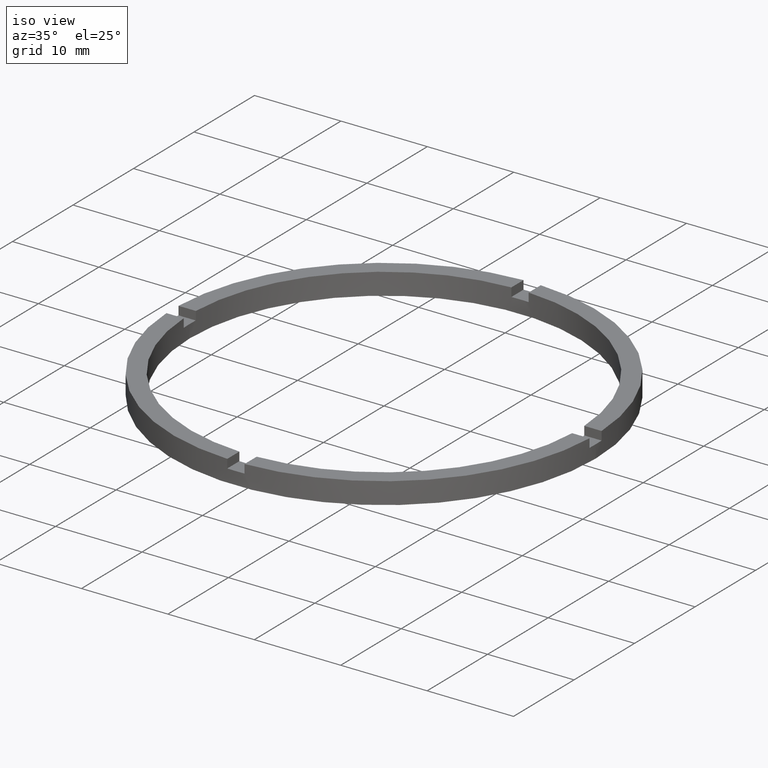
[diagram: clean part render]
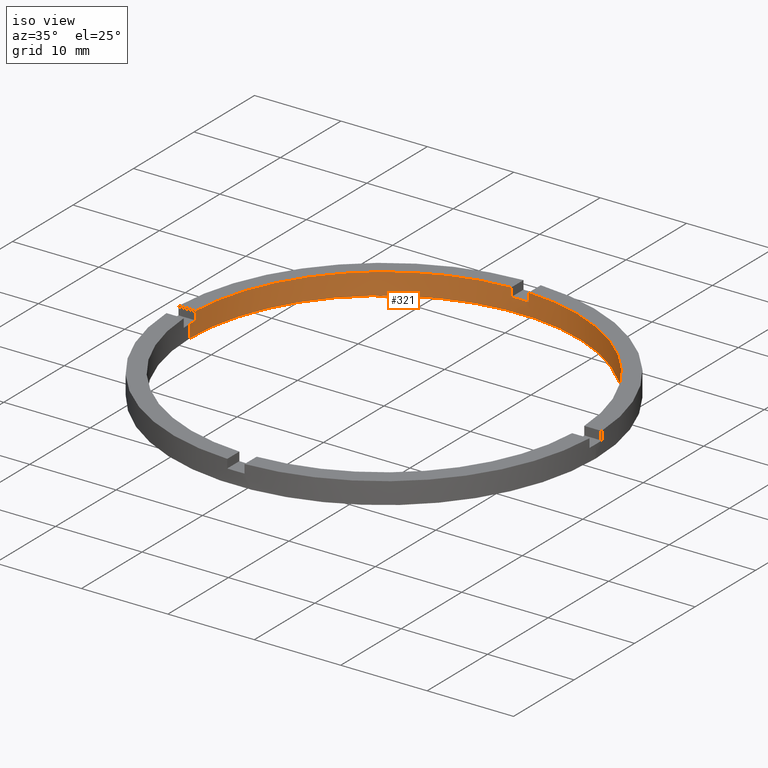
[diagram: same view with one face highlighted and labeled with its STEP entity id]
A machine part, iso view. The second image highlights one B-rep face of the part: STEP entity #321.
In plain terms, the highlighted cylindrical surface (partial cylindrical patch) has radius 22.5 mm, axis along (-0, -0, -1).
Its self-contained STEP definition (entity closure, byte-faithful):
#5 = EDGE_CURVE ( 'NONE', #759, #273, #355, .T. ) ;
#7 = DIRECTION ( 'NONE',  ( -0.000000000000000000, -0.000000000000000000, -1.000000000000000000 ) ) ;
#11 = ORIENTED_EDGE ( 'NONE', *, *, #5, .T. ) ;
#13 = VERTEX_POINT ( 'NONE', #702 ) ;
#16 = ORIENTED_EDGE ( 'NONE', *, *, #654, .F. ) ;
#30 = DIRECTION ( 'NONE',  ( 0.000000000000000000, 0.000000000000000000, 1.000000000000000000 ) ) ;
#32 = DIRECTION ( 'NONE',  ( 0.000000000000000000, 0.000000000000000000, 1.000000000000000000 ) ) ;
#41 = AXIS2_PLACEMENT_3D ( 'NONE', #48, #325, #628 ) ;
#43 = CARTESIAN_POINT ( 'NONE',  ( 22.47776679298903346, 0.9999999999998421263, 2.500000000000000000 ) ) ;
#48 = CARTESIAN_POINT ( 'NONE',  ( 0.000000000000000000, 0.000000000000000000, 2.500000000000000000 ) ) ;
#56 = CARTESIAN_POINT ( 'NONE',  ( -1.000000000000025979, 22.47776679298902636, 2.500000000000000000 ) ) ;
#62 = CARTESIAN_POINT ( 'NONE',  ( 22.50000000000000355, 2.755455298081545172E-15, 2.500000000000000000 ) ) ;
#64 = DIRECTION ( 'NONE',  ( 0.000000000000000000, -0.000000000000000000, 1.000000000000000000 ) ) ;
#67 = AXIS2_PLACEMENT_3D ( 'NONE', #761, #30, #616 ) ;
#73 = CARTESIAN_POINT ( 'NONE',  ( 0.9999999999999740208, 22.47776679298902636, 2.500000000000000000 ) ) ;
#76 = EDGE_CURVE ( 'NONE', #611, #520, #659, .T. ) ;
#78 = ORIENTED_EDGE ( 'NONE', *, *, #515, .T. ) ;
#81 = VERTEX_POINT ( 'NONE', #215 ) ;
#97 = VERTEX_POINT ( 'NONE', #507 ) ;
#101 = EDGE_CURVE ( 'NONE', #611, #643, #399, .T. ) ;
#105 = ORIENTED_EDGE ( 'NONE', *, *, #356, .T. ) ;
#123 = CARTESIAN_POINT ( 'NONE',  ( 22.50000000000000355, 2.755455298081545172E-15, 1.500000000000000000 ) ) ;
#128 = FACE_OUTER_BOUND ( 'NONE', #370, .T. ) ;
#129 = DIRECTION ( 'NONE',  ( -0.000000000000000000, -0.000000000000000000, -1.000000000000000000 ) ) ;
#153 = CIRCLE ( 'NONE', #41, 22.50000000000000355 ) ;
#167 = CIRCLE ( 'NONE', #225, 22.50000000000000355 ) ;
#168 = LINE ( 'NONE', #312, #686 ) ;
#178 = LINE ( 'NONE', #56, #430 ) ;
#198 = CIRCLE ( 'NONE', #673, 22.50000000000000355 ) ;
#209 = CARTESIAN_POINT ( 'NONE',  ( 22.47776679298903346, 0.9999999999998421263, 1.500000000000000000 ) ) ;
#215 = CARTESIAN_POINT ( 'NONE',  ( -1.000000000000025979, 22.47776679298902636, 2.500000000000000000 ) ) ;
#225 = AXIS2_PLACEMENT_3D ( 'NONE', #261, #64, #760 ) ;
#252 = CARTESIAN_POINT ( 'NONE',  ( -22.47776679298902636, 0.9999999999999746869, 2.500000000000000000 ) ) ;
#261 = CARTESIAN_POINT ( 'NONE',  ( 0.000000000000000000, 0.000000000000000000, 1.500000000000000000 ) ) ;
#270 = DIRECTION ( 'NONE',  ( 0.000000000000000000, 0.000000000000000000, 1.000000000000000000 ) ) ;
#271 = DIRECTION ( 'NONE',  ( 1.000000000000000000, 0.000000000000000000, 0.000000000000000000 ) ) ;
#273 = VERTEX_POINT ( 'NONE', #298 ) ;
#274 = VERTEX_POINT ( 'NONE', #748 ) ;
#283 = ORIENTED_EDGE ( 'NONE', *, *, #498, .F. ) ;
#298 = CARTESIAN_POINT ( 'NONE',  ( -22.50000000000000355, 0.000000000000000000, 1.500000000000000000 ) ) ;
#312 = CARTESIAN_POINT ( 'NONE',  ( -22.50000000000000355, 0.000000000000000000, 2.500000000000000000 ) ) ;
#313 = ORIENTED_EDGE ( 'NONE', *, *, #76, .F. ) ;
#321 = ADVANCED_FACE ( 'NONE', ( #128 ), #653, .F. ) ;
#325 = DIRECTION ( 'NONE',  ( 0.000000000000000000, 0.000000000000000000, 1.000000000000000000 ) ) ;
#335 = AXIS2_PLACEMENT_3D ( 'NONE', #339, #426, #496 ) ;
#339 = CARTESIAN_POINT ( 'NONE',  ( 0.000000000000000000, 0.000000000000000000, 2.500000000000000000 ) ) ;
#343 = VERTEX_POINT ( 'NONE', #712 ) ;
#348 = ORIENTED_EDGE ( 'NONE', *, *, #491, .T. ) ;
#355 = CIRCLE ( 'NONE', #67, 22.50000000000000355 ) ;
#356 = EDGE_CURVE ( 'NONE', #81, #614, #153, .T. ) ;
#359 = DIRECTION ( 'NONE',  ( 0.000000000000000000, 0.000000000000000000, 1.000000000000000000 ) ) ;
#362 = VERTEX_POINT ( 'NONE', #620 ) ;
#367 = ORIENTED_EDGE ( 'NONE', *, *, #593, .T. ) ;
#370 = EDGE_LOOP ( 'NONE', ( #313, #645, #16, #78, #536, #348, #383, #105, #283, #11, #367, #638 ) ) ;
#383 = ORIENTED_EDGE ( 'NONE', *, *, #456, .F. ) ;
#385 = VECTOR ( 'NONE', #129, 1000.000000000000000 ) ;
#388 = AXIS2_PLACEMENT_3D ( 'NONE', #459, #32, #441 ) ;
#399 = CIRCLE ( 'NONE', #494, 22.50000000000000355 ) ;
#423 = LINE ( 'NONE', #503, #425 ) ;
#425 = VECTOR ( 'NONE', #675, 1000.000000000000000 ) ;
#426 = DIRECTION ( 'NONE',  ( -0.000000000000000000, -0.000000000000000000, -1.000000000000000000 ) ) ;
#430 = VECTOR ( 'NONE', #7, 1000.000000000000000 ) ;
#441 = DIRECTION ( 'NONE',  ( 1.000000000000000000, 0.000000000000000000, 0.000000000000000000 ) ) ;
#446 = LINE ( 'NONE', #43, #725 ) ;
#456 = EDGE_CURVE ( 'NONE', #81, #13, #178, .T. ) ;
#459 = CARTESIAN_POINT ( 'NONE',  ( 0.000000000000000000, 0.000000000000000000, 0.000000000000000000 ) ) ;
#473 = DIRECTION ( 'NONE',  ( 0.000000000000000000, 0.000000000000000000, 1.000000000000000000 ) ) ;
#491 = EDGE_CURVE ( 'NONE', #97, #13, #167, .T. ) ;
#494 = AXIS2_PLACEMENT_3D ( 'NONE', #512, #359, #271 ) ;
#496 = DIRECTION ( 'NONE',  ( -1.000000000000000000, 0.000000000000000000, 0.000000000000000000 ) ) ;
#498 = EDGE_CURVE ( 'NONE', #759, #614, #423, .T. ) ;
#500 = DIRECTION ( 'NONE',  ( -0.000000000000000000, -0.000000000000000000, -1.000000000000000000 ) ) ;
#503 = CARTESIAN_POINT ( 'NONE',  ( -22.47776679298902636, 0.9999999999999746869, 2.500000000000000000 ) ) ;
#507 = CARTESIAN_POINT ( 'NONE',  ( 0.9999999999999740208, 22.47776679298902636, 1.500000000000000000 ) ) ;
#512 = CARTESIAN_POINT ( 'NONE',  ( 0.000000000000000000, 0.000000000000000000, 1.500000000000000000 ) ) ;
#515 = EDGE_CURVE ( 'NONE', #343, #274, #198, .T. ) ;
#520 = VERTEX_POINT ( 'NONE', #539 ) ;
#536 = ORIENTED_EDGE ( 'NONE', *, *, #652, .F. ) ;
#539 = CARTESIAN_POINT ( 'NONE',  ( 22.50000000000000355, 2.755455298081545172E-15, 0.000000000000000000 ) ) ;
#593 = EDGE_CURVE ( 'NONE', #273, #362, #168, .T. ) ;
#595 = CARTESIAN_POINT ( 'NONE',  ( -22.47776679298902636, 0.9999999999999746869, 1.500000000000000000 ) ) ;
#609 = DIRECTION ( 'NONE',  ( 1.000000000000000000, 0.000000000000000000, 0.000000000000000000 ) ) ;
#611 = VERTEX_POINT ( 'NONE', #123 ) ;
#614 = VERTEX_POINT ( 'NONE', #252 ) ;
#616 = DIRECTION ( 'NONE',  ( 1.000000000000000000, 0.000000000000000000, 0.000000000000000000 ) ) ;
#620 = CARTESIAN_POINT ( 'NONE',  ( -22.50000000000000355, 0.000000000000000000, 0.000000000000000000 ) ) ;
#628 = DIRECTION ( 'NONE',  ( 1.000000000000000000, 0.000000000000000000, 0.000000000000000000 ) ) ;
#638 = ORIENTED_EDGE ( 'NONE', *, *, #769, .F. ) ;
#643 = VERTEX_POINT ( 'NONE', #209 ) ;
#645 = ORIENTED_EDGE ( 'NONE', *, *, #101, .T. ) ;
#652 = EDGE_CURVE ( 'NONE', #97, #274, #701, .T. ) ;
#653 = CYLINDRICAL_SURFACE ( 'NONE', #335, 22.50000000000000355 ) ;
#654 = EDGE_CURVE ( 'NONE', #343, #643, #446, .T. ) ;
#659 = LINE ( 'NONE', #62, #385 ) ;
#673 = AXIS2_PLACEMENT_3D ( 'NONE', #753, #473, #609 ) ;
#675 = DIRECTION ( 'NONE',  ( 0.000000000000000000, 0.000000000000000000, 1.000000000000000000 ) ) ;
#683 = DIRECTION ( 'NONE',  ( -0.000000000000000000, -0.000000000000000000, -1.000000000000000000 ) ) ;
#686 = VECTOR ( 'NONE', #500, 1000.000000000000000 ) ;
#697 = CIRCLE ( 'NONE', #388, 22.50000000000000355 ) ;
#701 = LINE ( 'NONE', #73, #708 ) ;
#702 = CARTESIAN_POINT ( 'NONE',  ( -1.000000000000025979, 22.47776679298902636, 1.500000000000000000 ) ) ;
#708 = VECTOR ( 'NONE', #270, 1000.000000000000000 ) ;
#712 = CARTESIAN_POINT ( 'NONE',  ( 22.47776679298903346, 0.9999999999998421263, 2.500000000000000000 ) ) ;
#725 = VECTOR ( 'NONE', #683, 1000.000000000000000 ) ;
#748 = CARTESIAN_POINT ( 'NONE',  ( 0.9999999999999740208, 22.47776679298902636, 2.500000000000000000 ) ) ;
#753 = CARTESIAN_POINT ( 'NONE',  ( 0.000000000000000000, 0.000000000000000000, 2.500000000000000000 ) ) ;
#759 = VERTEX_POINT ( 'NONE', #595 ) ;
#760 = DIRECTION ( 'NONE',  ( 1.000000000000000000, 0.000000000000000000, 0.000000000000000000 ) ) ;
#761 = CARTESIAN_POINT ( 'NONE',  ( 0.000000000000000000, 0.000000000000000000, 1.500000000000000000 ) ) ;
#769 = EDGE_CURVE ( 'NONE', #520, #362, #697, .T. ) ;